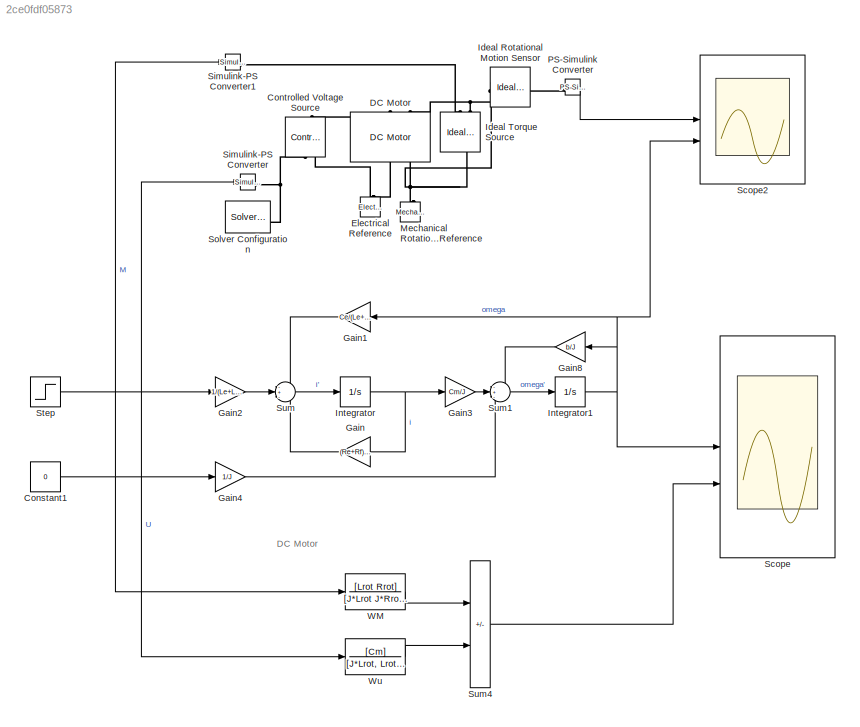
MODEL slx_2ce0fdf05873
KIND model
CONFIG AbsTol = auto
CONFIG EnableMultiTasking = off
CONFIG FixedStep = auto
CONFIG MaxStep = auto
CONFIG MinStep = auto
CONFIG PreLoadFcn = param
CONFIG RelTol = 1e-3
CONFIG SampleTimeConstraint = Unconstrained
CONFIG SolverName = VariableStepAuto
CONFIG StartTime = 0.0
CONFIG StopTime = 10.0
BLOCK [Constant] Constant1
  Value = 0
BLOCK [Reference] Controlled Voltage Source  REF=fl_lib/Electrical/Electrical Sources/Controlled Voltage
Source
  NameLocation = top
  SourceBlock = fl_lib/Electrical/Electrical Sources/Controlled Voltage\nSource
  SourceType = Controlled Voltage\nSource
BLOCK [Reference] DC Motor  REF=ee_lib/Electromechanical/Brushed Motors/DC Motor
  NameLocation = right
  SourceBlock = ee_lib/Electromechanical/Brushed Motors/DC Motor
  SourceType = DC Motor
BLOCK [Reference] Electrical Reference  REF=fl_lib/Electrical/Electrical Elements/Electrical Reference
  NameLocation = right
  SourceBlock = fl_lib/Electrical/Electrical Elements/Electrical Reference
  SourceType = Electrical Reference
BLOCK [Gain] Gain
  Gain = (Re+Rf)/(Le+Lf)
  NameLocation = top
BLOCK [Gain] Gain1
  Gain = Ce/(Le+Lf)
  NameLocation = top
BLOCK [Gain] Gain2
  Gain = 1/(Le+Lf)
BLOCK [Gain] Gain3
  Gain = Cm/J
BLOCK [Gain] Gain4
  Gain = 1/J
BLOCK [Gain] Gain8
  Gain = b/J
  NameLocation = top
BLOCK [Reference] Ideal Rotational Motion Sensor  REF=fl_lib/Mechanical/Mechanical Sensors/Ideal Rotational
Motion Sensor
  SourceBlock = fl_lib/Mechanical/Mechanical Sensors/Ideal Rotational\nMotion Sensor
  SourceType = Ideal Rotational\nMotion Sensor
BLOCK [Reference] Ideal Torque Source  REF=fl_lib/Mechanical/Mechanical Sources/Ideal Torque Source
  NameLocation = left
  SourceBlock = fl_lib/Mechanical/Mechanical Sources/Ideal Torque Source
  SourceType = Ideal Torque Source
BLOCK [Integrator] Integrator
BLOCK [Integrator] Integrator1
BLOCK [Reference] Mechanical Rotational Reference  REF=fl_lib/Mechanical/Rotational Elements/Mechanical
Rotational Reference
  NameLocation = right
  SourceBlock = fl_lib/Mechanical/Rotational Elements/Mechanical\nRotational Reference
  SourceType = Mechanical\nRotational Reference
BLOCK [Reference] PS-Simulink Converter  REF=nesl_utility/PS-Simulink
Converter
  SourceBlock = nesl_utility/PS-Simulink\nConverter
  SourceType = PS-Simulink\nConverter
BLOCK [Scope] Scope
  Floating = off
  NumInputPorts = 2
  ScopeSpecificationString = Simulink.scopes.TimeScopeBlockCfg('CurrentConfiguration', extmgr.ConfigurationSet(extmgr.Configuration('Core','General UI',true),extmgr.Configuration('Core','Source UI',true),extmgr.Configuration('Sources','WiredSimulink',true),extmgr.Configuration('Visuals','Time Domain',true,'SerializedDisplays',{struct('MinYLimReal','-180.52149','MaxYLimReal','1624.67118','YLabelReal','','MinYLimMag',' 0.00000'...<+1496ch>
BLOCK [Scope] Scope2
  Floating = off
  NumInputPorts = 2
  ScopeSpecificationString = Simulink.scopes.TimeScopeBlockCfg('CurrentConfiguration', extmgr.ConfigurationSet(extmgr.Configuration('Core','General UI',true),extmgr.Configuration('Core','Source UI',true),extmgr.Configuration('Sources','WiredSimulink',true,'DataLoggingVariableName','ScopeData1'),extmgr.Configuration('Visuals','Time Domain',true,'SerializedDisplays',{struct('MinYLimReal','-180.52149','MaxYLimReal','1624.67118',...<+1474ch>
BLOCK [Reference] Simulink-PS Converter  REF=nesl_utility/Simulink-PS
Converter
  SourceBlock = nesl_utility/Simulink-PS\nConverter
  SourceType = Simulink-PS\nConverter
BLOCK [Reference] Simulink-PS Converter1  REF=nesl_utility/Simulink-PS
Converter
  SourceBlock = nesl_utility/Simulink-PS\nConverter
  SourceType = Simulink-PS\nConverter
BLOCK [Reference] Solver Configuration  REF=nesl_utility/Solver
Configuration
  SourceBlock = nesl_utility/Solver\nConfiguration
  SourceType = Solver\nConfiguration
BLOCK [Step] Step
  SampleTime = 0
BLOCK [Sum] Sum
  Inputs = -+-
BLOCK [Sum] Sum1
  Inputs = -+-
BLOCK [Sum] Sum4
  IconShape = rectangular
  Inputs = -+
BLOCK [TransferFcn] WM
  Denominator = [J*Lrot J*Rrot+Lrot*b Ce*Cm+Rrot*b]
  Numerator = [Lrot Rrot]
BLOCK [TransferFcn] Wu
  Denominator = [J*Lrot, Lrot*b + J*Rrot, Rrot*b + Ce*Cm]
  Numerator = [Cm]
ANNOTATION (root): DC Motor
NET Constant1:1 -> Gain4:1, Simulink-PS Converter1:1, WM:1
LINE Gain1:1 -> Sum:1
LINE Gain2:1 -> Sum:2
LINE Gain3:1 -> Sum1:2
LINE Gain4:1 -> Sum1:3
LINE Gain8:1 -> Sum1:1
LINE Gain:1 -> Sum:3
NET Integrator1:1 -> Gain1:1, Gain8:1, Scope2:2, Scope:1
NET Integrator:1 -> Gain3:1, Gain:1
LINE PS-Simulink Converter:1 -> Scope2:1
NET Step:1 -> Gain2:1, Simulink-PS Converter:1, Wu:1
LINE Sum1:1 -> Integrator1:1
LINE Sum4:1 -> Scope:2
LINE Sum:1 -> Integrator:1
LINE WM:1 -> Sum4:1
LINE Wu:1 -> Sum4:2
PLINE Controlled Voltage Source:LConn1 -- DC Motor:LConn1
PNET net1: Controlled Voltage Source:RConn1 -- Simulink-PS Converter:RConn1 -- Solver Configuration:RConn1
PNET net2: Controlled Voltage Source:RConn2 -- DC Motor:RConn1 -- Electrical Reference:LConn1
PNET net3: DC Motor:LConn2 -- Ideal Rotational Motion Sensor:LConn1 -- Ideal Torque Source:RConn2
PNET net4: DC Motor:RConn2 -- Ideal Rotational Motion Sensor:RConn1 -- Ideal Torque Source:LConn1 -- Mechanical Rotational Reference:LConn1
PLINE Ideal Rotational Motion Sensor:RConn2 -- PS-Simulink Converter:LConn1
PLINE Ideal Torque Source:RConn1 -- Simulink-PS Converter1:RConn1
note: NET lines group one-source signal fan-out (src -> all destinations, sorted); 1:1 wires keep LINE; PNET lines group multi-terminal physical nets as a canonical sorted terminal list (undirected conserving connections); 2-terminal nets keep the pairwise PLINE form
